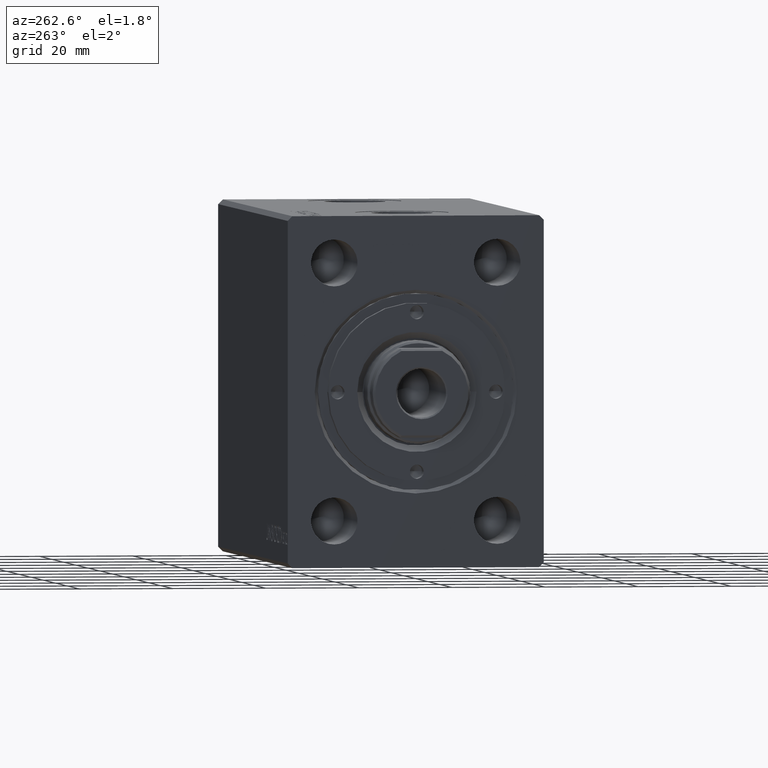
[diagram: clean part render]
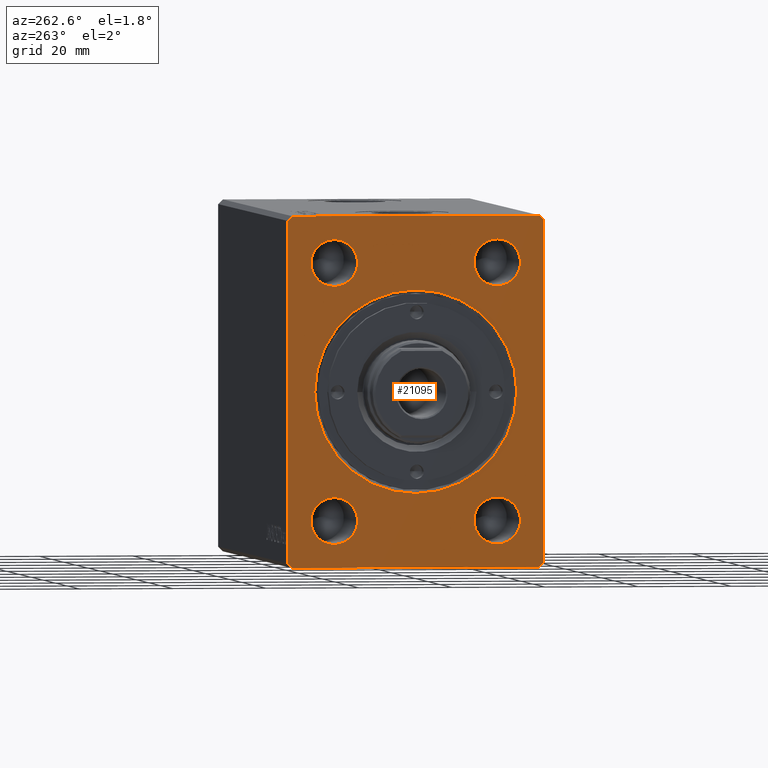
[diagram: same view with one face highlighted and labeled with its STEP entity id]
A machine part, auxiliary view. The second image highlights one B-rep face of the part: STEP entity #21095.
In plain terms, the highlighted planar face has unit normal (1, 0, 0).
Its self-contained STEP definition (entity closure, byte-faithful):
#153 = ORIENTED_EDGE ( 'NONE', *, *, #590, .F. ) ;
#438 = CIRCLE ( 'NONE', #22467, 4.999999999999997335 ) ;
#544 = DIRECTION ( 'NONE',  ( 0.000000000000000000, 0.000000000000000000, -1.000000000000000000 ) ) ;
#590 = EDGE_CURVE ( 'NONE', #42654, #6674, #26445, .T. ) ;
#778 = DIRECTION ( 'NONE',  ( 0.000000000000000000, 0.000000000000000000, 1.000000000000000000 ) ) ;
#820 = CARTESIAN_POINT ( 'NONE',  ( 1.224646799147350495E-16, -17.50000000000000000, 22.50000000000000711 ) ) ;
#940 = DIRECTION ( 'NONE',  ( 0.000000000000000000, 1.000000000000000000, 0.000000000000000000 ) ) ;
#1470 = VERTEX_POINT ( 'NONE', #3927 ) ;
#1650 = AXIS2_PLACEMENT_3D ( 'NONE', #17450, #31036, #544 ) ;
#1712 = CARTESIAN_POINT ( 'NONE',  ( 1.224646799147350495E-16, 17.50000000000000000, 32.50000000000000000 ) ) ;
#1842 = VERTEX_POINT ( 'NONE', #18528 ) ;
#1850 = VERTEX_POINT ( 'NONE', #34781 ) ;
#2002 = LINE ( 'NONE', #4905, #32826 ) ;
#2020 = ORIENTED_EDGE ( 'NONE', *, *, #21332, .F. ) ;
#2032 = LINE ( 'NONE', #9149, #3075 ) ;
#2433 = ORIENTED_EDGE ( 'NONE', *, *, #13986, .T. ) ;
#2562 = EDGE_CURVE ( 'NONE', #1842, #12241, #38586, .T. ) ;
#2575 = DIRECTION ( 'NONE',  ( 0.000000000000000000, -0.7071067811865474617, 0.7071067811865474617 ) ) ;
#3020 = VECTOR ( 'NONE', #24797, 1000.000000000000114 ) ;
#3056 = VECTOR ( 'NONE', #17741, 1000.000000000000000 ) ;
#3075 = VECTOR ( 'NONE', #12268, 1000.000000000000000 ) ;
#3107 = CARTESIAN_POINT ( 'NONE',  ( 0.000000000000000000, 0.000000000000000000, 21.70000000000003837 ) ) ;
#3233 = EDGE_CURVE ( 'NONE', #19572, #25227, #2032, .T. ) ;
#3290 = DIRECTION ( 'NONE',  ( 1.000000000000000000, 0.000000000000000000, 0.000000000000000000 ) ) ;
#3399 = DIRECTION ( 'NONE',  ( -1.000000000000000000, -0.000000000000000000, -0.000000000000000000 ) ) ;
#3600 = CARTESIAN_POINT ( 'NONE',  ( 1.224646799147350495E-16, 17.50000000000000000, 27.50000000000000000 ) ) ;
#3709 = CIRCLE ( 'NONE', #30720, 4.999999999999997335 ) ;
#3927 = CARTESIAN_POINT ( 'NONE',  ( 1.224646799147350495E-16, -17.50000000000000000, 32.50000000000000000 ) ) ;
#3965 = EDGE_CURVE ( 'NONE', #25227, #21068, #32629, .T. ) ;
#4172 = CARTESIAN_POINT ( 'NONE',  ( 0.000000000000000000, 27.50000000000000711, -36.49999999999999289 ) ) ;
#4282 = EDGE_CURVE ( 'NONE', #9192, #27579, #39307, .T. ) ;
#4319 = EDGE_LOOP ( 'NONE', ( #10611, #9737, #8855, #43307, #12657, #31778, #6448, #8679 ) ) ;
#4557 = CARTESIAN_POINT ( 'NONE',  ( 0.000000000000000000, 26.50000000000000355, 37.50000000000000711 ) ) ;
#4905 = CARTESIAN_POINT ( 'NONE',  ( 0.000000000000000000, -26.50000000000000711, 37.50000000000000711 ) ) ;
#5000 = DIRECTION ( 'NONE',  ( 0.000000000000000000, 0.000000000000000000, 1.000000000000000000 ) ) ;
#5108 = CARTESIAN_POINT ( 'NONE',  ( 1.224646799147350495E-16, 17.50000000000000000, 27.50000000000000000 ) ) ;
#5141 = CIRCLE ( 'NONE', #37837, 4.999999999999997335 ) ;
#5631 = CARTESIAN_POINT ( 'NONE',  ( 0.000000000000000000, 26.50000000000000711, -37.49999999999999289 ) ) ;
#6350 = CARTESIAN_POINT ( 'NONE',  ( 0.000000000000000000, 27.50000000000000355, 36.50000000000000711 ) ) ;
#6448 = ORIENTED_EDGE ( 'NONE', *, *, #39377, .F. ) ;
#6674 = VERTEX_POINT ( 'NONE', #29012 ) ;
#6731 = ORIENTED_EDGE ( 'NONE', *, *, #4282, .F. ) ;
#6822 = AXIS2_PLACEMENT_3D ( 'NONE', #41103, #3290, #10625 ) ;
#7442 = EDGE_CURVE ( 'NONE', #34251, #18257, #20960, .T. ) ;
#7765 = CARTESIAN_POINT ( 'NONE',  ( 1.224646799147350495E-16, -17.50000000000000000, -32.49999999999999289 ) ) ;
#8109 = DIRECTION ( 'NONE',  ( 1.000000000000000000, 0.000000000000000000, 0.000000000000000000 ) ) ;
#8679 = ORIENTED_EDGE ( 'NONE', *, *, #20819, .F. ) ;
#8801 = ORIENTED_EDGE ( 'NONE', *, *, #7442, .F. ) ;
#8855 = ORIENTED_EDGE ( 'NONE', *, *, #27408, .F. ) ;
#8995 = EDGE_CURVE ( 'NONE', #21068, #30833, #39782, .T. ) ;
#9149 = CARTESIAN_POINT ( 'NONE',  ( 0.000000000000000000, -27.50000000000000711, 36.50000000000000711 ) ) ;
#9192 = VERTEX_POINT ( 'NONE', #1712 ) ;
#9737 = ORIENTED_EDGE ( 'NONE', *, *, #24264, .F. ) ;
#10032 = EDGE_LOOP ( 'NONE', ( #6731, #11274 ) ) ;
#10229 = ORIENTED_EDGE ( 'NONE', *, *, #2562, .T. ) ;
#10611 = ORIENTED_EDGE ( 'NONE', *, *, #27189, .F. ) ;
#10625 = DIRECTION ( 'NONE',  ( 0.000000000000000000, 0.000000000000000000, -1.000000000000000000 ) ) ;
#11055 = EDGE_LOOP ( 'NONE', ( #153, #16671 ) ) ;
#11274 = ORIENTED_EDGE ( 'NONE', *, *, #33915, .F. ) ;
#11438 = FACE_BOUND ( 'NONE', #18984, .T. ) ;
#12014 = DIRECTION ( 'NONE',  ( 0.000000000000000000, 0.000000000000000000, 1.000000000000000000 ) ) ;
#12241 = VERTEX_POINT ( 'NONE', #3107 ) ;
#12268 = DIRECTION ( 'NONE',  ( 0.000000000000000000, 4.752667057470705491E-17, -1.000000000000000000 ) ) ;
#12545 = DIRECTION ( 'NONE',  ( 0.000000000000000000, 0.000000000000000000, 1.000000000000000000 ) ) ;
#12657 = ORIENTED_EDGE ( 'NONE', *, *, #3965, .F. ) ;
#12762 = CARTESIAN_POINT ( 'NONE',  ( 1.224646799147350495E-16, 17.50000000000000000, 22.50000000000000355 ) ) ;
#13086 = DIRECTION ( 'NONE',  ( 0.000000000000000000, -1.000000000000000000, 0.000000000000000000 ) ) ;
#13986 = EDGE_CURVE ( 'NONE', #12241, #1842, #36669, .T. ) ;
#14070 = DIRECTION ( 'NONE',  ( -1.000000000000000000, -0.000000000000000000, -0.000000000000000000 ) ) ;
#14134 = FACE_BOUND ( 'NONE', #11055, .T. ) ;
#14345 = FACE_OUTER_BOUND ( 'NONE', #4319, .T. ) ;
#14426 = EDGE_CURVE ( 'NONE', #6674, #42654, #438, .T. ) ;
#14493 = AXIS2_PLACEMENT_3D ( 'NONE', #5108, #28715, #12014 ) ;
#14566 = PLANE ( 'NONE',  #24062 ) ;
#14997 = DIRECTION ( 'NONE',  ( -1.000000000000000000, -0.000000000000000000, -0.000000000000000000 ) ) ;
#15571 = DIRECTION ( 'NONE',  ( 0.000000000000000000, -0.7071067811865474617, -0.7071067811865474617 ) ) ;
#15894 = CARTESIAN_POINT ( 'NONE',  ( 1.224646799147350495E-16, -17.50000000000000000, -22.50000000000000000 ) ) ;
#16671 = ORIENTED_EDGE ( 'NONE', *, *, #14426, .F. ) ;
#16740 = EDGE_LOOP ( 'NONE', ( #2433, #10229 ) ) ;
#17450 = CARTESIAN_POINT ( 'NONE',  ( 0.000000000000000000, 0.000000000000000000, 0.000000000000000000 ) ) ;
#17741 = DIRECTION ( 'NONE',  ( 0.000000000000000000, -4.752667057470704875E-17, 1.000000000000000000 ) ) ;
#17899 = CARTESIAN_POINT ( 'NONE',  ( 0.000000000000000000, 26.50000000000000711, -37.49999999999999289 ) ) ;
#18100 = AXIS2_PLACEMENT_3D ( 'NONE', #25069, #18829, #32402 ) ;
#18119 = FACE_BOUND ( 'NONE', #40742, .T. ) ;
#18126 = LINE ( 'NONE', #17899, #3020 ) ;
#18257 = VERTEX_POINT ( 'NONE', #15894 ) ;
#18528 = CARTESIAN_POINT ( 'NONE',  ( 0.000000000000000000, 2.657483554149761471E-15, -21.70000000000003837 ) ) ;
#18829 = DIRECTION ( 'NONE',  ( -1.000000000000000000, -0.000000000000000000, -0.000000000000000000 ) ) ;
#18984 = EDGE_LOOP ( 'NONE', ( #34303, #2020 ) ) ;
#19201 = DIRECTION ( 'NONE',  ( -1.000000000000000000, -0.000000000000000000, -0.000000000000000000 ) ) ;
#19320 = CARTESIAN_POINT ( 'NONE',  ( 0.000000000000000000, -27.50000000000000355, -36.49999999999998579 ) ) ;
#19572 = VERTEX_POINT ( 'NONE', #26469 ) ;
#20081 = VERTEX_POINT ( 'NONE', #820 ) ;
#20348 = VERTEX_POINT ( 'NONE', #38153 ) ;
#20819 = EDGE_CURVE ( 'NONE', #27449, #20348, #40881, .T. ) ;
#20960 = CIRCLE ( 'NONE', #18100, 4.999999999999997335 ) ;
#21068 = VERTEX_POINT ( 'NONE', #23473 ) ;
#21085 = LINE ( 'NONE', #4172, #3056 ) ;
#21095 = ADVANCED_FACE ( 'NONE', ( #41907, #18119, #14134, #11438, #34370, #14345 ), #14566, .F. ) ;
#21332 = EDGE_CURVE ( 'NONE', #20081, #1470, #31196, .T. ) ;
#22467 = AXIS2_PLACEMENT_3D ( 'NONE', #35460, #39026, #12545 ) ;
#23473 = CARTESIAN_POINT ( 'NONE',  ( 0.000000000000000000, -26.50000000000000355, -37.49999999999999289 ) ) ;
#23641 = CARTESIAN_POINT ( 'NONE',  ( 1.224646799147350495E-16, -17.50000000000000000, 27.50000000000000355 ) ) ;
#24062 = AXIS2_PLACEMENT_3D ( 'NONE', #25001, #8109, #28567 ) ;
#24264 = EDGE_CURVE ( 'NONE', #36543, #1850, #21085, .T. ) ;
#24797 = DIRECTION ( 'NONE',  ( 0.000000000000000000, 0.7071067811865474617, 0.7071067811865474617 ) ) ;
#25001 = CARTESIAN_POINT ( 'NONE',  ( 0.000000000000000000, 0.000000000000000000, 0.000000000000000000 ) ) ;
#25069 = CARTESIAN_POINT ( 'NONE',  ( 1.224646799147350495E-16, -17.50000000000000000, -27.49999999999999645 ) ) ;
#25227 = VERTEX_POINT ( 'NONE', #19320 ) ;
#25489 = VECTOR ( 'NONE', #13086, 1000.000000000000000 ) ;
#25661 = CARTESIAN_POINT ( 'NONE',  ( 1.224646799147350495E-16, -17.50000000000000000, 27.50000000000000355 ) ) ;
#26316 = DIRECTION ( 'NONE',  ( 0.000000000000000000, 0.000000000000000000, 1.000000000000000000 ) ) ;
#26445 = CIRCLE ( 'NONE', #32138, 4.999999999999997335 ) ;
#26469 = CARTESIAN_POINT ( 'NONE',  ( 0.000000000000000000, -27.50000000000000711, 36.50000000000000711 ) ) ;
#27189 = EDGE_CURVE ( 'NONE', #1850, #27449, #35951, .T. ) ;
#27207 = CARTESIAN_POINT ( 'NONE',  ( 1.224646799147350495E-16, 17.50000000000000000, -22.49999999999999645 ) ) ;
#27408 = EDGE_CURVE ( 'NONE', #30833, #36543, #18126, .T. ) ;
#27449 = VERTEX_POINT ( 'NONE', #4557 ) ;
#27456 = EDGE_CURVE ( 'NONE', #18257, #34251, #5141, .T. ) ;
#27579 = VERTEX_POINT ( 'NONE', #12762 ) ;
#28005 = CARTESIAN_POINT ( 'NONE',  ( 0.000000000000000000, 27.50000000000000711, -36.49999999999999289 ) ) ;
#28379 = CARTESIAN_POINT ( 'NONE',  ( 1.224646799147350495E-16, 17.50000000000000000, -27.49999999999999289 ) ) ;
#28567 = DIRECTION ( 'NONE',  ( 0.000000000000000000, 0.000000000000000000, -1.000000000000000000 ) ) ;
#28715 = DIRECTION ( 'NONE',  ( -1.000000000000000000, -0.000000000000000000, -0.000000000000000000 ) ) ;
#29012 = CARTESIAN_POINT ( 'NONE',  ( 1.224646799147350495E-16, 17.50000000000000000, -32.49999999999998579 ) ) ;
#29305 = CARTESIAN_POINT ( 'NONE',  ( 0.000000000000000000, -27.50000000000000355, -36.49999999999998579 ) ) ;
#29387 = VECTOR ( 'NONE', #42859, 1000.000000000000114 ) ;
#30720 = AXIS2_PLACEMENT_3D ( 'NONE', #25661, #19201, #32564 ) ;
#30833 = VERTEX_POINT ( 'NONE', #5631 ) ;
#31036 = DIRECTION ( 'NONE',  ( 1.000000000000000000, 0.000000000000000000, 0.000000000000000000 ) ) ;
#31196 = CIRCLE ( 'NONE', #35427, 4.999999999999997335 ) ;
#31273 = CARTESIAN_POINT ( 'NONE',  ( 1.224646799147350495E-16, -17.50000000000000000, -27.49999999999999645 ) ) ;
#31430 = CARTESIAN_POINT ( 'NONE',  ( 0.000000000000000000, -26.50000000000000355, -37.49999999999999289 ) ) ;
#31778 = ORIENTED_EDGE ( 'NONE', *, *, #3233, .F. ) ;
#32138 = AXIS2_PLACEMENT_3D ( 'NONE', #28379, #42165, #5000 ) ;
#32402 = DIRECTION ( 'NONE',  ( 0.000000000000000000, 0.000000000000000000, 1.000000000000000000 ) ) ;
#32564 = DIRECTION ( 'NONE',  ( 0.000000000000000000, 0.000000000000000000, 1.000000000000000000 ) ) ;
#32629 = LINE ( 'NONE', #29305, #29387 ) ;
#32826 = VECTOR ( 'NONE', #15571, 1000.000000000000114 ) ;
#33915 = EDGE_CURVE ( 'NONE', #27579, #9192, #39262, .T. ) ;
#34251 = VERTEX_POINT ( 'NONE', #7765 ) ;
#34299 = DIRECTION ( 'NONE',  ( 0.000000000000000000, 0.000000000000000000, 1.000000000000000000 ) ) ;
#34303 = ORIENTED_EDGE ( 'NONE', *, *, #42596, .F. ) ;
#34370 = FACE_BOUND ( 'NONE', #16740, .T. ) ;
#34486 = VECTOR ( 'NONE', #940, 1000.000000000000000 ) ;
#34781 = CARTESIAN_POINT ( 'NONE',  ( 0.000000000000000000, 27.50000000000000355, 36.50000000000000711 ) ) ;
#35427 = AXIS2_PLACEMENT_3D ( 'NONE', #23641, #3399, #26316 ) ;
#35460 = CARTESIAN_POINT ( 'NONE',  ( 1.224646799147350495E-16, 17.50000000000000000, -27.49999999999999289 ) ) ;
#35813 = ORIENTED_EDGE ( 'NONE', *, *, #27456, .F. ) ;
#35951 = LINE ( 'NONE', #6350, #43507 ) ;
#36543 = VERTEX_POINT ( 'NONE', #28005 ) ;
#36669 = CIRCLE ( 'NONE', #6822, 21.70000000000003837 ) ;
#37837 = AXIS2_PLACEMENT_3D ( 'NONE', #31273, #14997, #778 ) ;
#38153 = CARTESIAN_POINT ( 'NONE',  ( 0.000000000000000000, -26.50000000000000711, 37.50000000000000711 ) ) ;
#38586 = CIRCLE ( 'NONE', #1650, 21.70000000000003837 ) ;
#39026 = DIRECTION ( 'NONE',  ( -1.000000000000000000, -0.000000000000000000, -0.000000000000000000 ) ) ;
#39262 = CIRCLE ( 'NONE', #43541, 5.000000000000000888 ) ;
#39307 = CIRCLE ( 'NONE', #14493, 5.000000000000000888 ) ;
#39377 = EDGE_CURVE ( 'NONE', #20348, #19572, #2002, .T. ) ;
#39782 = LINE ( 'NONE', #31430, #34486 ) ;
#40742 = EDGE_LOOP ( 'NONE', ( #35813, #8801 ) ) ;
#40881 = LINE ( 'NONE', #43550, #25489 ) ;
#41103 = CARTESIAN_POINT ( 'NONE',  ( 0.000000000000000000, 0.000000000000000000, 0.000000000000000000 ) ) ;
#41907 = FACE_BOUND ( 'NONE', #10032, .T. ) ;
#42165 = DIRECTION ( 'NONE',  ( -1.000000000000000000, -0.000000000000000000, -0.000000000000000000 ) ) ;
#42596 = EDGE_CURVE ( 'NONE', #1470, #20081, #3709, .T. ) ;
#42654 = VERTEX_POINT ( 'NONE', #27207 ) ;
#42859 = DIRECTION ( 'NONE',  ( 0.000000000000000000, 0.7071067811865451302, -0.7071067811865500152 ) ) ;
#43307 = ORIENTED_EDGE ( 'NONE', *, *, #8995, .F. ) ;
#43507 = VECTOR ( 'NONE', #2575, 1000.000000000000114 ) ;
#43541 = AXIS2_PLACEMENT_3D ( 'NONE', #3600, #14070, #34299 ) ;
#43550 = CARTESIAN_POINT ( 'NONE',  ( 0.000000000000000000, 26.50000000000000355, 37.50000000000000711 ) ) ;